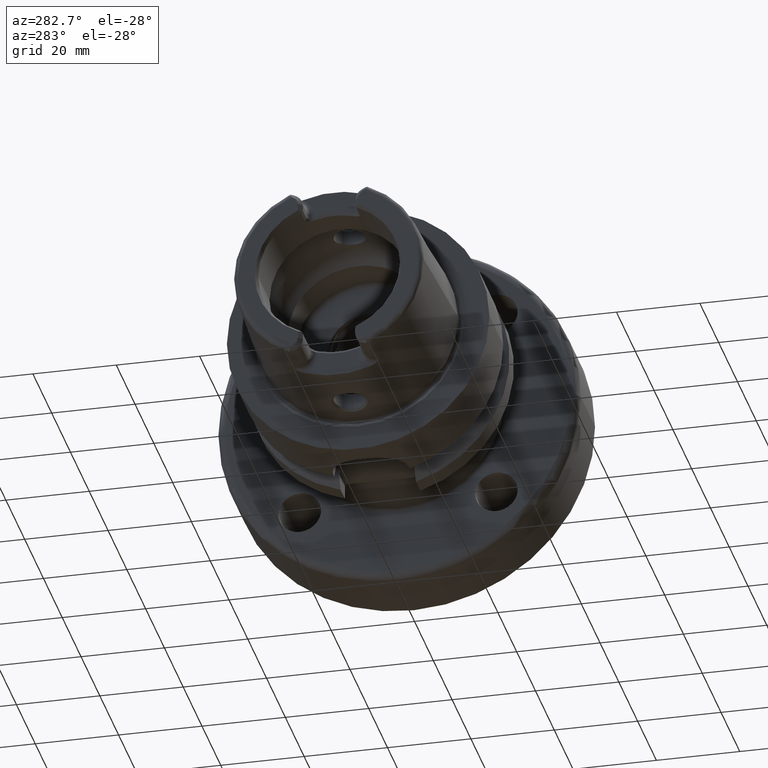
[diagram: clean part render]
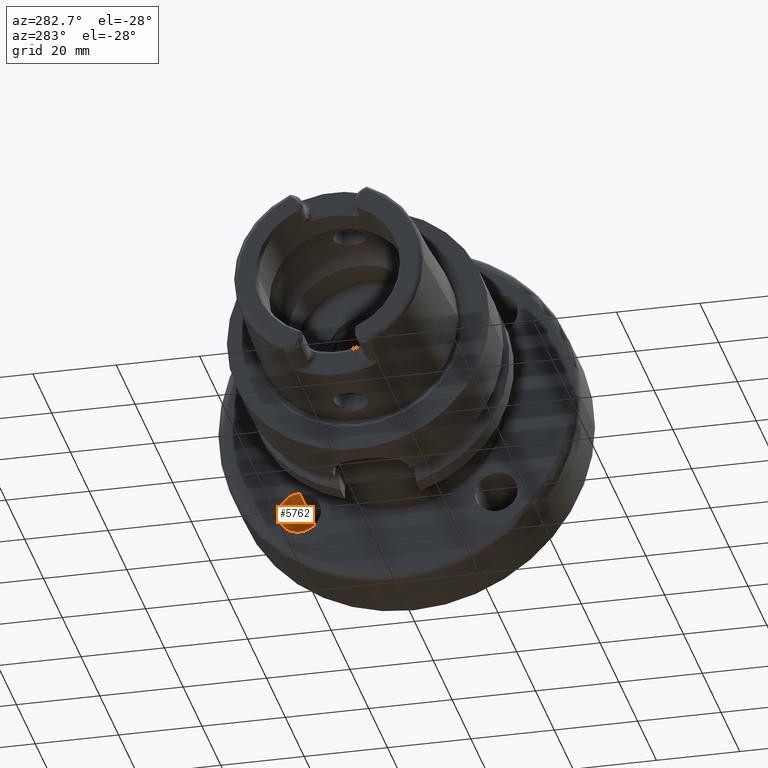
[diagram: same view with one face highlighted and labeled with its STEP entity id]
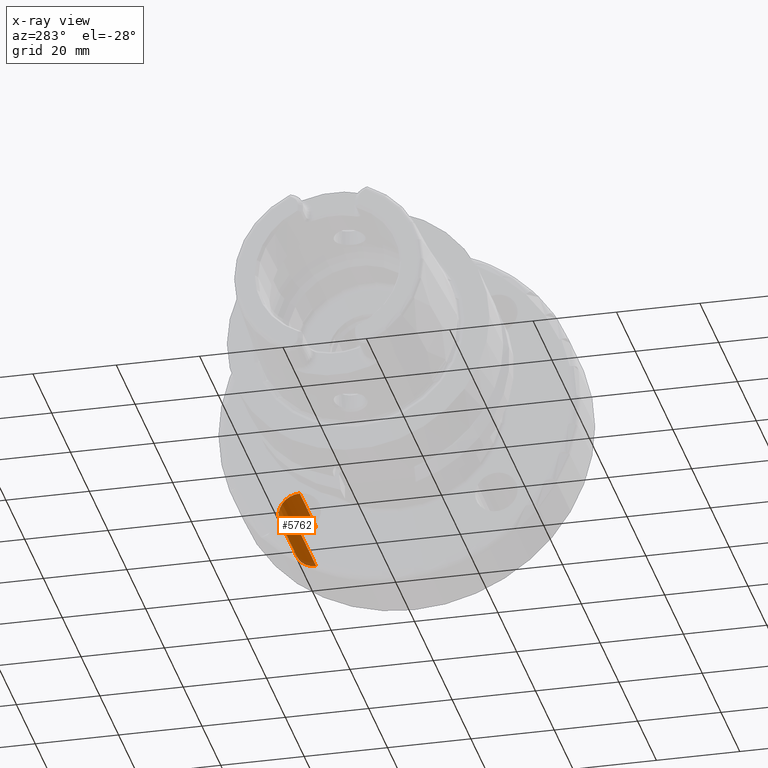
[diagram: x-ray of the same camera — body ghosted, the highlighted face saturated]
A machine part, auxiliary view. The second image highlights one B-rep face of the part: STEP entity #5762.
The next image is the same camera in x-ray: the body ghosted, the highlighted face saturated — about 6% of this face is hidden behind the body in this view.
In plain terms, the highlighted cylindrical surface (edge-blend (fillet) strip) has radius 5.1 mm, axis along (1, 0, 0).
Its self-contained STEP definition (entity closure, byte-faithful):
#1536=CARTESIAN_POINT('',(4.25E1,2.358201115257E1,-2.358201115257E1));
#1537=DIRECTION('',(1.E0,0.E0,0.E0));
#1538=DIRECTION('',(0.E0,0.E0,-1.E0));
#1539=AXIS2_PLACEMENT_3D('',#1536,#1537,#1538);
#1696=CARTESIAN_POINT('',(6.E1,2.358201115257E1,-2.358201115257E1));
#1697=DIRECTION('',(1.E0,0.E0,0.E0));
#1698=DIRECTION('',(0.E0,0.E0,-1.E0));
#1699=AXIS2_PLACEMENT_3D('',#1696,#1697,#1698);
#1863=DIRECTION('',(1.E0,0.E0,0.E0));
#1864=VECTOR('',#1863,1.75E1);
#1865=CARTESIAN_POINT('',(4.25E1,2.358201115257E1,-2.868201115257E1));
#1866=LINE('',#1865,#1864);
#1867=DIRECTION('',(1.E0,0.E0,0.E0));
#1868=VECTOR('',#1867,1.75E1);
#1869=CARTESIAN_POINT('',(4.25E1,2.358201115257E1,-1.848201115257E1));
#1870=LINE('',#1869,#1868);
#3518=CARTESIAN_POINT('',(6.E1,2.358201115257E1,-1.848201115257E1));
#3519=CARTESIAN_POINT('',(6.E1,2.358201115257E1,-2.868201115257E1));
#3520=VERTEX_POINT('',#3518);
#3521=VERTEX_POINT('',#3519);
#3522=CARTESIAN_POINT('',(4.25E1,2.358201115257E1,-1.848201115257E1));
#3523=VERTEX_POINT('',#3522);
#3524=CARTESIAN_POINT('',(4.25E1,2.358201115257E1,-2.868201115257E1));
#3525=VERTEX_POINT('',#3524);
#5751=CARTESIAN_POINT('',(3.053239138511E1,2.358201115257E1,-2.358201115257E1));
#5752=DIRECTION('',(1.E0,0.E0,0.E0));
#5753=DIRECTION('',(0.E0,0.E0,1.E0));
#5754=AXIS2_PLACEMENT_3D('',#5751,#5752,#5753);
#5755=CYLINDRICAL_SURFACE('',#5754,5.1E0);
#5756=ORIENTED_EDGE('',*,*,#5394,.F.);
#5757=ORIENTED_EDGE('',*,*,#5746,.F.);
#5758=ORIENTED_EDGE('',*,*,#5224,.T.);
#5759=ORIENTED_EDGE('',*,*,#5743,.T.);
#5760=EDGE_LOOP('',(#5756,#5757,#5758,#5759));
#5761=FACE_OUTER_BOUND('',#5760,.F.);
#5762=ADVANCED_FACE('',(#5761),#5755,.F.);
#1540=CIRCLE('',#1539,5.1E0);
#1700=CIRCLE('',#1699,5.1E0);
#5224=EDGE_CURVE('',#3525,#3523,#1540,.T.);
#5394=EDGE_CURVE('',#3521,#3520,#1700,.T.);
#5743=EDGE_CURVE('',#3523,#3520,#1870,.T.);
#5746=EDGE_CURVE('',#3525,#3521,#1866,.T.);